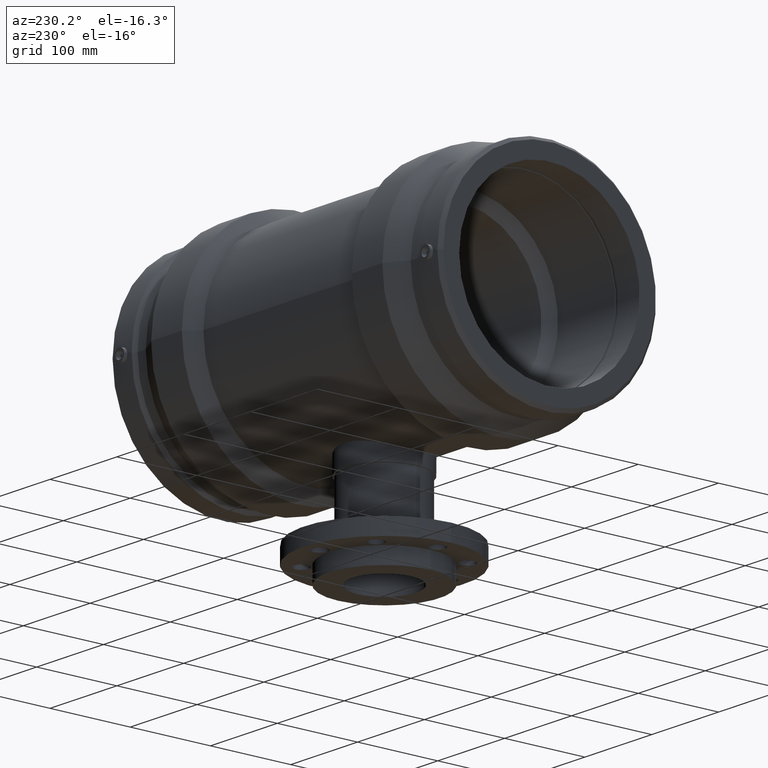
[diagram: clean part render]
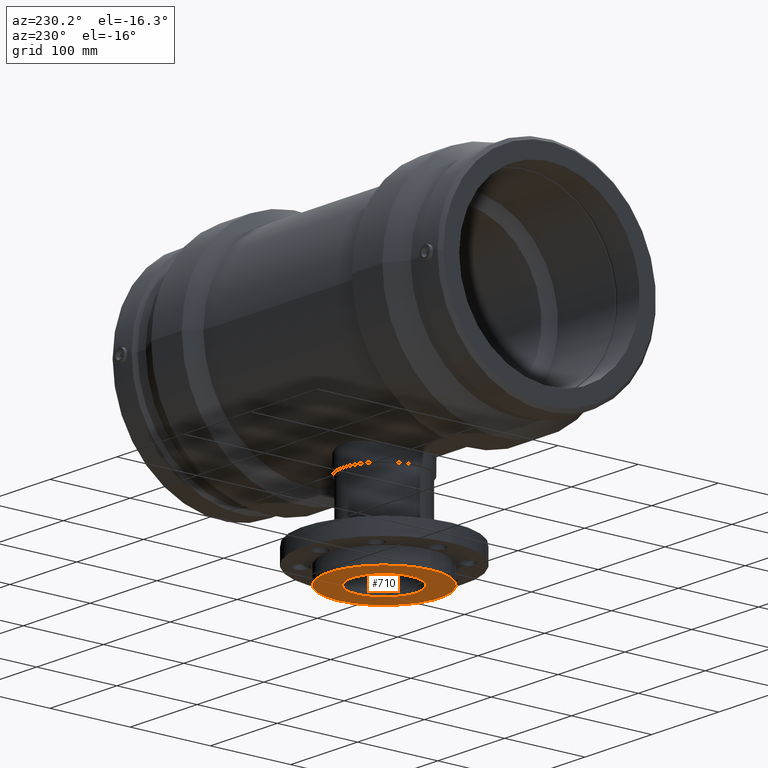
[diagram: same view with one face highlighted and labeled with its STEP entity id]
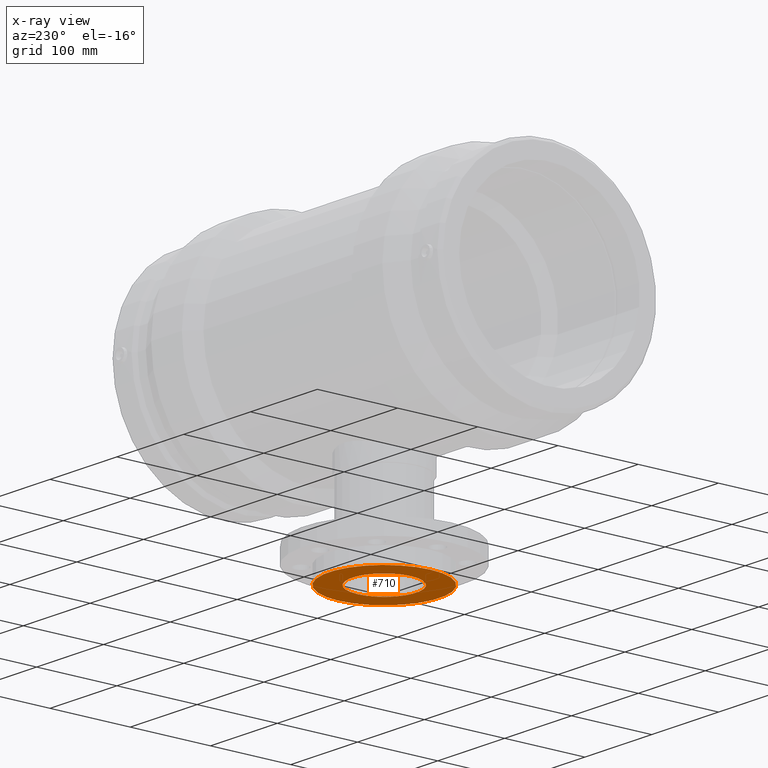
[diagram: x-ray of the same camera — body ghosted, the highlighted face saturated]
A machine part, auxiliary view. The second image highlights one B-rep face of the part: STEP entity #710.
The next image is the same camera in x-ray: the body ghosted, the highlighted face saturated — about 0% of this face is hidden behind the body in this view.
In plain terms, the highlighted planar face has unit normal (-0, 0, -1).
Its self-contained STEP definition (entity closure, byte-faithful):
#30=PLANE('',#789);
#54=FACE_BOUND('',#297,.T.);
#137=CIRCLE('',#786,40.);
#139=CIRCLE('',#790,69.);
#226=FACE_OUTER_BOUND('',#296,.T.);
#296=EDGE_LOOP('',(#582));
#297=EDGE_LOOP('',(#583));
#437=VERTEX_POINT('',#1443);
#440=VERTEX_POINT('',#1516);
#507=EDGE_CURVE('',#437,#437,#137,.T.);
#510=EDGE_CURVE('',#440,#440,#139,.T.);
#582=ORIENTED_EDGE('',*,*,#510,.T.);
#583=ORIENTED_EDGE('',*,*,#507,.F.);
#710=ADVANCED_FACE('',(#226,#54),#30,.T.);
#786=AXIS2_PLACEMENT_3D('',#1444,#937,#938);
#789=AXIS2_PLACEMENT_3D('',#1515,#943,#944);
#790=AXIS2_PLACEMENT_3D('',#1517,#945,#946);
#937=DIRECTION('center_axis',(-1.22464679914735E-16,0.,-1.));
#938=DIRECTION('ref_axis',(1.,0.,-1.22464679914735E-16));
#943=DIRECTION('center_axis',(-1.22464679914735E-16,0.,-1.));
#944=DIRECTION('ref_axis',(-1.,0.,0.));
#945=DIRECTION('center_axis',(-1.22464679914735E-16,0.,-1.));
#946=DIRECTION('ref_axis',(1.,0.,-1.22464679914735E-16));
#1443=CARTESIAN_POINT('',(-40.,0.,-255.));
#1444=CARTESIAN_POINT('Origin',(-3.12284933782575E-14,0.,-255.));
#1515=CARTESIAN_POINT('Origin',(-40.,0.,-255.));
#1516=CARTESIAN_POINT('',(-69.,0.,-255.));
#1517=CARTESIAN_POINT('Origin',(-3.12284933782575E-14,0.,-255.));